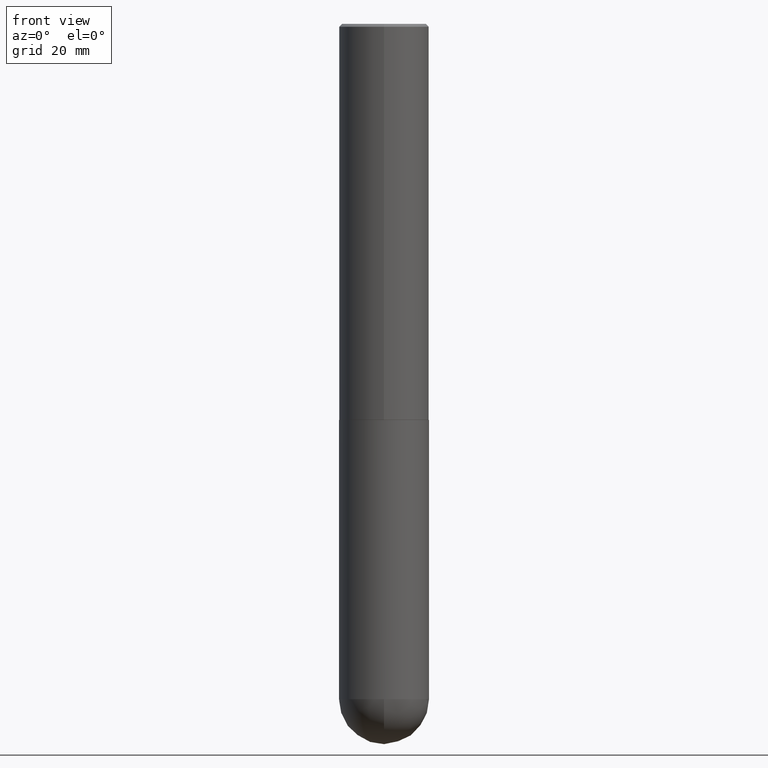
[diagram: clean part render]
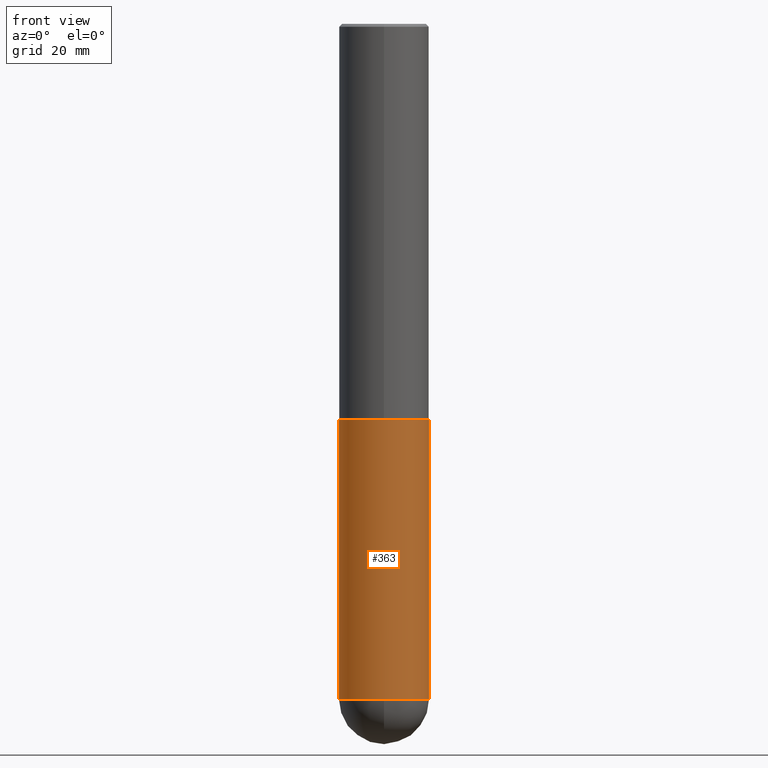
[diagram: same view with one face highlighted and labeled with its STEP entity id]
A machine part, front view. The second image highlights one B-rep face of the part: STEP entity #363.
In plain terms, the highlighted cylindrical surface (partial cylindrical patch) has radius 7.9375 mm, axis along (-0, 0, 1).
Its self-contained STEP definition (entity closure, byte-faithful):
#1 = ORIENTED_EDGE ( 'NONE', *, *, #77, .F. ) ;
#13 = EDGE_CURVE ( 'NONE', #185, #41, #212, .T. ) ;
#20 = ORIENTED_EDGE ( 'NONE', *, *, #148, .T. ) ;
#21 = DIRECTION ( 'NONE',  ( -2.445468806185136597E-29, 3.491481338843145583E-15, 1.000000000000000000 ) ) ;
#26 = CARTESIAN_POINT ( 'NONE',  ( -0.3125000000000000000, -1.076350017957263365E-14, -2.750000000000000000 ) ) ;
#27 = AXIS2_PLACEMENT_3D ( 'NONE', #35, #124, #328 ) ;
#29 = CARTESIAN_POINT ( 'NONE',  ( 0.3125000000000000000, -2.182175836776958347E-15, 1.523805242436230075E-29 ) ) ;
#33 = VERTEX_POINT ( 'NONE', #52 ) ;
#35 = CARTESIAN_POINT ( 'NONE',  ( 1.146313502899282780E-28, -1.636631877582724203E-14, -4.687500000000000000 ) ) ;
#41 = VERTEX_POINT ( 'NONE', #147 ) ;
#52 = CARTESIAN_POINT ( 'NONE',  ( -2.220446049250200668E-15, -0.3125000000000168199, -4.687499999999998224 ) ) ;
#55 = VERTEX_POINT ( 'NONE', #26 ) ;
#57 = AXIS2_PLACEMENT_3D ( 'NONE', #152, #21, #126 ) ;
#63 = ORIENTED_EDGE ( 'NONE', *, *, #131, .T. ) ;
#70 = CARTESIAN_POINT ( 'NONE',  ( 0.3125000000000000000, -1.516612206559990666E-14, -4.687500000000000000 ) ) ;
#76 = CARTESIAN_POINT ( 'NONE',  ( -0.3125000000000000000, -1.076350017957263681E-14, -4.687500000000000000 ) ) ;
#77 = EDGE_CURVE ( 'NONE', #115, #55, #187, .T. ) ;
#92 = DIRECTION ( 'NONE',  ( -2.445468806185136597E-29, 3.491481338843145583E-15, 1.000000000000000000 ) ) ;
#115 = VERTEX_POINT ( 'NONE', #76 ) ;
#124 = DIRECTION ( 'NONE',  ( -2.445468806185136597E-29, 3.491481338843145583E-15, 1.000000000000000000 ) ) ;
#126 = DIRECTION ( 'NONE',  ( 1.000000000000000000, -6.982962677686266711E-15, 4.876176775795936353E-29 ) ) ;
#131 = EDGE_CURVE ( 'NONE', #115, #33, #221, .T. ) ;
#141 = DIRECTION ( 'NONE',  ( -2.445468806185136877E-29, 3.491481338843145188E-15, 1.000000000000000000 ) ) ;
#147 = CARTESIAN_POINT ( 'NONE',  ( 0.3125000000000000000, -1.178374951859560978E-14, -2.750000000000000000 ) ) ;
#148 = EDGE_CURVE ( 'NONE', #33, #185, #171, .T. ) ;
#152 = CARTESIAN_POINT ( 'NONE',  ( 0.000000000000000000, 0.000000000000000000, 0.000000000000000000 ) ) ;
#153 = VECTOR ( 'NONE', #412, 39.37007874015748143 ) ;
#156 = DIRECTION ( 'NONE',  ( 1.000000000000000000, -6.982962677686269077E-15, 0.000000000000000000 ) ) ;
#171 = CIRCLE ( 'NONE', #27, 0.3125000000000000000 ) ;
#185 = VERTEX_POINT ( 'NONE', #70 ) ;
#187 = LINE ( 'NONE', #317, #324 ) ;
#195 = DIRECTION ( 'NONE',  ( -2.445468806185136597E-29, 3.491481338843145583E-15, 1.000000000000000000 ) ) ;
#206 = FACE_OUTER_BOUND ( 'NONE', #351, .T. ) ;
#212 = LINE ( 'NONE', #29, #153 ) ;
#216 = CARTESIAN_POINT ( 'NONE',  ( 1.146313502899282780E-28, -1.636631877582724203E-14, -4.687500000000000000 ) ) ;
#221 = CIRCLE ( 'NONE', #369, 0.3125000000000000000 ) ;
#229 = AXIS2_PLACEMENT_3D ( 'NONE', #349, #92, #156 ) ;
#269 = EDGE_CURVE ( 'NONE', #55, #41, #305, .T. ) ;
#283 = ORIENTED_EDGE ( 'NONE', *, *, #269, .F. ) ;
#297 = ORIENTED_EDGE ( 'NONE', *, *, #13, .T. ) ;
#305 = CIRCLE ( 'NONE', #229, 0.3125000000000000000 ) ;
#317 = CARTESIAN_POINT ( 'NONE',  ( -0.3125000000000000000, 2.220446049250313081E-15, -1.537167215704658232E-29 ) ) ;
#324 = VECTOR ( 'NONE', #141, 39.37007874015748143 ) ;
#328 = DIRECTION ( 'NONE',  ( 1.000000000000000000, -6.982962677686269077E-15, 0.000000000000000000 ) ) ;
#349 = CARTESIAN_POINT ( 'NONE',  ( 6.725039217009124520E-29, -9.601573681818649859E-15, -2.750000000000000000 ) ) ;
#351 = EDGE_LOOP ( 'NONE', ( #1, #63, #20, #297, #283 ) ) ;
#363 = ADVANCED_FACE ( 'NONE', ( #206 ), #405, .T. ) ;
#369 = AXIS2_PLACEMENT_3D ( 'NONE', #216, #195, #389 ) ;
#389 = DIRECTION ( 'NONE',  ( 1.000000000000000000, -6.982962677686269077E-15, 0.000000000000000000 ) ) ;
#405 = CYLINDRICAL_SURFACE ( 'NONE', #57, 0.3125000000000000000 ) ;
#412 = DIRECTION ( 'NONE',  ( -2.445468806185136877E-29, 3.491481338843145188E-15, 1.000000000000000000 ) ) ;